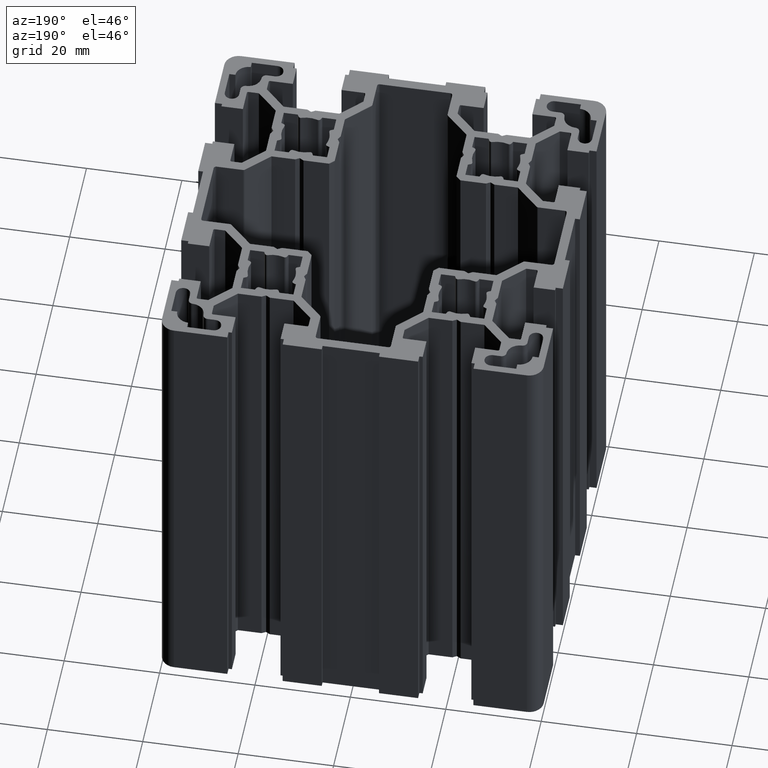
[diagram: clean part render]
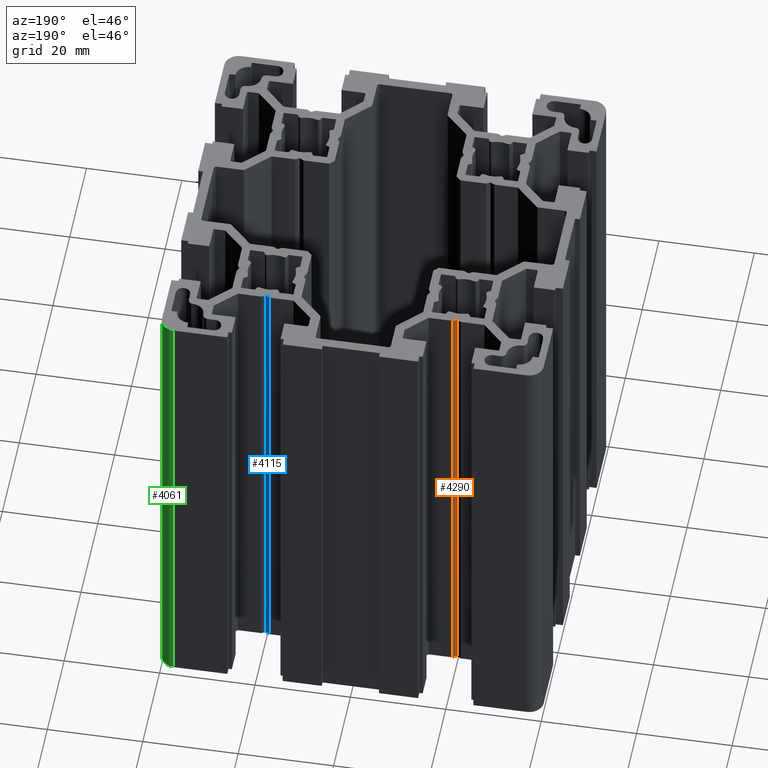
[diagram: same view with three faces highlighted in distinct colors, each labeled with its STEP entity id]
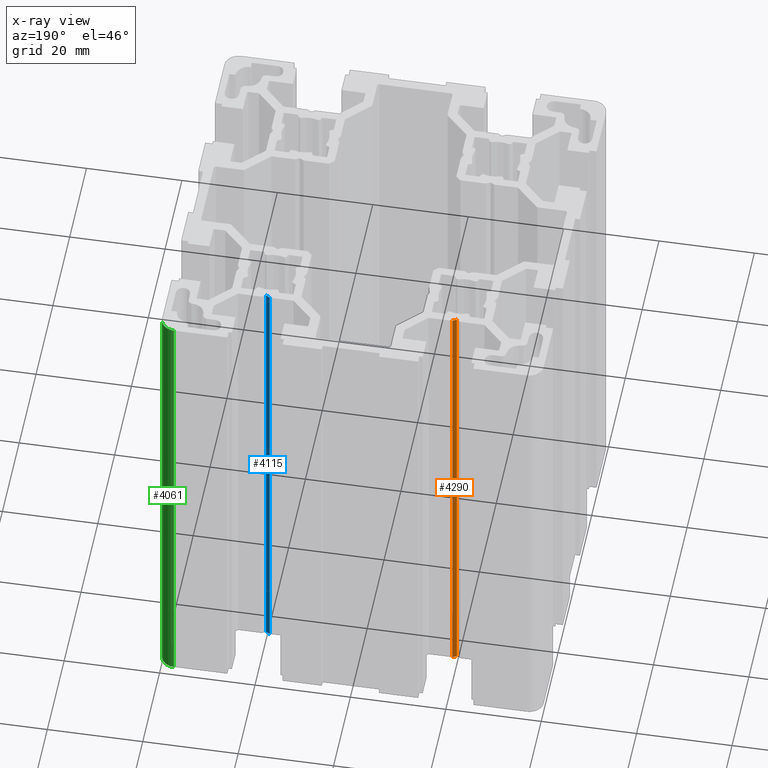
[diagram: x-ray of the same camera — body ghosted, the three highlighted faces saturated]
A machine part, auxiliary view with three faces highlighted in distinct colors.
The next image is the same camera in x-ray (body ghosted, the three faces saturated) — at least one of them is partly hidden behind the body in this view.
Their STEP definitions:

[orange] entity #4290 — the highlighted planar face has unit normal (0.5, -0.866, 0).
#379 = CARTESIAN_POINT ( 'NONE',  ( -19.13397338490159100, 27.25000000000000000, 0.0000000000000000000 ) ) ;
#1496 = CARTESIAN_POINT ( 'NONE',  ( -20.00000069603467900, 26.75000000000000000, 0.0000000000000000000 ) ) ;
#1930 = DIRECTION ( 'NONE',  ( -0.8660258806204188500, -0.4999991740949457100, -0.0000000000000000000 ) ) ;
#1931 = VECTOR ( 'NONE', #1930, 1000.000000000000100 ) ;
#1932 = CARTESIAN_POINT ( 'NONE',  ( -20.00000069603467900, 26.75000000000000000, 0.0000000000000000000 ) ) ;
#1934 = LINE ( 'NONE', #1932, #1931 ) ;
#4242 = EDGE_LOOP ( 'NONE', ( #4291, #4289, #4293, #4294 ) ) ;
#4288 = EDGE_CURVE ( 'NONE', #6105, #7162, #10989, .T. ) ;
#4289 = ORIENTED_EDGE ( 'NONE', *, *, #4288, .F. ) ;
#4290 = ADVANCED_FACE ( 'NONE', ( #11043 ), #11003, .F. ) ;
#4291 = ORIENTED_EDGE ( 'NONE', *, *, #7606, .T. ) ;
#4293 = ORIENTED_EDGE ( 'NONE', *, *, #6171, .F. ) ;
#4294 = ORIENTED_EDGE ( 'NONE', *, *, #4303, .T. ) ;
#4303 = EDGE_CURVE ( 'NONE', #6102, #6582, #11021, .T. ) ;
#6102 = VERTEX_POINT ( 'NONE', #13636 ) ;
#6105 = VERTEX_POINT ( 'NONE', #13684 ) ;
#6171 = EDGE_CURVE ( 'NONE', #6102, #6105, #13798, .T. ) ;
#6582 = VERTEX_POINT ( 'NONE', #379 ) ;
#7162 = VERTEX_POINT ( 'NONE', #1496 ) ;
#7606 = EDGE_CURVE ( 'NONE', #6582, #7162, #1934, .T. ) ;
#10989 = LINE ( 'NONE', #11040, #10995 ) ;
#10995 = VECTOR ( 'NONE', #11038, 1000.000000000000000 ) ;
#11003 = PLANE ( 'NONE',  #11037 ) ;
#11020 = CARTESIAN_POINT ( 'NONE',  ( -19.13397338490159100, 27.25000000000000000, 100.0000000000000000 ) ) ;
#11021 = LINE ( 'NONE', #11020, #11073 ) ;
#11032 = DIRECTION ( 'NONE',  ( 0.8660258806204188500, 0.4999991740949456500, 0.0000000000000000000 ) ) ;
#11033 = DIRECTION ( 'NONE',  ( 0.4999991740949457100, -0.8660258806204189600, 0.0000000000000000000 ) ) ;
#11034 = CARTESIAN_POINT ( 'NONE',  ( -20.00000069603467900, 26.75000000000000000, 100.0000000000000000 ) ) ;
#11037 = AXIS2_PLACEMENT_3D ( 'NONE', #11034, #11033, #11032 ) ;
#11038 = DIRECTION ( 'NONE',  ( -0.0000000000000000000, -0.0000000000000000000, -1.000000000000000000 ) ) ;
#11040 = CARTESIAN_POINT ( 'NONE',  ( -20.00000069603467900, 26.75000000000000000, 100.0000000000000000 ) ) ;
#11043 = FACE_OUTER_BOUND ( 'NONE', #4242, .T. ) ;
#11072 = DIRECTION ( 'NONE',  ( -0.0000000000000000000, -0.0000000000000000000, -1.000000000000000000 ) ) ;
#11073 = VECTOR ( 'NONE', #11072, 1000.000000000000000 ) ;
#13636 = CARTESIAN_POINT ( 'NONE',  ( -19.13397338490159100, 27.25000000000000000, 100.0000000000000000 ) ) ;
#13684 = CARTESIAN_POINT ( 'NONE',  ( -20.00000069603467900, 26.75000000000000000, 100.0000000000000000 ) ) ;
#13794 = DIRECTION ( 'NONE',  ( -0.8660258806204188500, -0.4999991740949457100, -0.0000000000000000000 ) ) ;
#13795 = VECTOR ( 'NONE', #13794, 1000.000000000000100 ) ;
#13796 = CARTESIAN_POINT ( 'NONE',  ( -20.00000069603467900, 26.75000000000000000, 100.0000000000000000 ) ) ;
#13798 = LINE ( 'NONE', #13796, #13795 ) ;

[blue] entity #4115 — the highlighted planar face has unit normal (-0.5, -0.866, 0).
#1944 = CARTESIAN_POINT ( 'NONE',  ( 19.99999948390340900, 26.75000000000000000, 0.0000000000000000000 ) ) ;
#2023 = CARTESIAN_POINT ( 'NONE',  ( 19.13397217277032100, 27.25000000000000000, 0.0000000000000000000 ) ) ;
#2043 = DIRECTION ( 'NONE',  ( -0.8660258806204188500, 0.4999991740949457100, 0.0000000000000000000 ) ) ;
#2044 = VECTOR ( 'NONE', #2043, 1000.000000000000100 ) ;
#2045 = CARTESIAN_POINT ( 'NONE',  ( 19.99999948390340900, 26.75000000000000000, 0.0000000000000000000 ) ) ;
#2046 = LINE ( 'NONE', #2045, #2044 ) ;
#2477 = VERTEX_POINT ( 'NONE', #8190 ) ;
#2478 = VERTEX_POINT ( 'NONE', #8194 ) ;
#2539 = EDGE_CURVE ( 'NONE', #2478, #2477, #8299, .T. ) ;
#4113 = EDGE_CURVE ( 'NONE', #2477, #11827, #10760, .T. ) ;
#4114 = ORIENTED_EDGE ( 'NONE', *, *, #4113, .F. ) ;
#4115 = ADVANCED_FACE ( 'NONE', ( #10765 ), #10761, .F. ) ;
#4116 = ORIENTED_EDGE ( 'NONE', *, *, #11482, .T. ) ;
#4118 = ORIENTED_EDGE ( 'NONE', *, *, #2539, .F. ) ;
#4126 = EDGE_LOOP ( 'NONE', ( #4116, #4114, #4118, #4167 ) ) ;
#4129 = EDGE_CURVE ( 'NONE', #2478, #9128, #10800, .T. ) ;
#4167 = ORIENTED_EDGE ( 'NONE', *, *, #4129, .T. ) ;
#8190 = CARTESIAN_POINT ( 'NONE',  ( 19.13397217277032100, 27.25000000000000000, 100.0000000000000000 ) ) ;
#8194 = CARTESIAN_POINT ( 'NONE',  ( 19.99999948390340900, 26.75000000000000000, 100.0000000000000000 ) ) ;
#8296 = DIRECTION ( 'NONE',  ( -0.8660258806204188500, 0.4999991740949457100, 0.0000000000000000000 ) ) ;
#8297 = VECTOR ( 'NONE', #8296, 1000.000000000000100 ) ;
#8298 = CARTESIAN_POINT ( 'NONE',  ( 19.99999948390340900, 26.75000000000000000, 100.0000000000000000 ) ) ;
#8299 = LINE ( 'NONE', #8298, #8297 ) ;
#9128 = VERTEX_POINT ( 'NONE', #1944 ) ;
#10752 = DIRECTION ( 'NONE',  ( 0.8660258806204188500, -0.4999991740949456500, 0.0000000000000000000 ) ) ;
#10753 = DIRECTION ( 'NONE',  ( -0.4999991740949457100, -0.8660258806204189600, 0.0000000000000000000 ) ) ;
#10754 = CARTESIAN_POINT ( 'NONE',  ( 19.99999948390340900, 26.75000000000000000, 100.0000000000000000 ) ) ;
#10755 = AXIS2_PLACEMENT_3D ( 'NONE', #10754, #10753, #10752 ) ;
#10757 = DIRECTION ( 'NONE',  ( -0.0000000000000000000, -0.0000000000000000000, -1.000000000000000000 ) ) ;
#10758 = VECTOR ( 'NONE', #10757, 1000.000000000000000 ) ;
#10759 = CARTESIAN_POINT ( 'NONE',  ( 19.13397217277032100, 27.25000000000000000, 100.0000000000000000 ) ) ;
#10760 = LINE ( 'NONE', #10759, #10758 ) ;
#10761 = PLANE ( 'NONE',  #10755 ) ;
#10765 = FACE_OUTER_BOUND ( 'NONE', #4126, .T. ) ;
#10797 = DIRECTION ( 'NONE',  ( -0.0000000000000000000, -0.0000000000000000000, -1.000000000000000000 ) ) ;
#10798 = VECTOR ( 'NONE', #10797, 1000.000000000000000 ) ;
#10799 = CARTESIAN_POINT ( 'NONE',  ( 19.99999948390340900, 26.75000000000000000, 100.0000000000000000 ) ) ;
#10800 = LINE ( 'NONE', #10799, #10798 ) ;
#11482 = EDGE_CURVE ( 'NONE', #9128, #11827, #2046, .T. ) ;
#11827 = VERTEX_POINT ( 'NONE', #2023 ) ;

[green] entity #4061 — the highlighted cylindrical surface (edge-blend (fillet) strip) has radius 3 mm, axis along (-0, -0, -1).
#2066 = CARTESIAN_POINT ( 'NONE',  ( 39.99999853022909200, 36.99999999999999300, 0.0000000000000000000 ) ) ;
#2078 = CARTESIAN_POINT ( 'NONE',  ( 36.99999853022909900, 39.99999999999999300, 0.0000000000000000000 ) ) ;
#2091 = CIRCLE ( 'NONE', #2128, 2.999999999999995600 ) ;
#2118 = DIRECTION ( 'NONE',  ( 1.000000000000000000, 0.0000000000000000000, 0.0000000000000000000 ) ) ;
#2119 = DIRECTION ( 'NONE',  ( 0.0000000000000000000, 0.0000000000000000000, 1.000000000000000000 ) ) ;
#2120 = CARTESIAN_POINT ( 'NONE',  ( 36.99999853022909900, 36.99999999999999300, 0.0000000000000000000 ) ) ;
#2128 = AXIS2_PLACEMENT_3D ( 'NONE', #2120, #2119, #2118 ) ;
#2506 = VERTEX_POINT ( 'NONE', #8196 ) ;
#2526 = EDGE_CURVE ( 'NONE', #2566, #2506, #8274, .T. ) ;
#2566 = VERTEX_POINT ( 'NONE', #8362 ) ;
#3984 = ORIENTED_EDGE ( 'NONE', *, *, #4005, .T. ) ;
#4005 = EDGE_CURVE ( 'NONE', #2566, #12098, #10576, .T. ) ;
#4043 = ORIENTED_EDGE ( 'NONE', *, *, #2526, .F. ) ;
#4059 = EDGE_CURVE ( 'NONE', #2506, #11987, #10667, .T. ) ;
#4060 = ORIENTED_EDGE ( 'NONE', *, *, #4059, .F. ) ;
#4061 = ADVANCED_FACE ( 'NONE', ( #10672 ), #10663, .T. ) ;
#4062 = ORIENTED_EDGE ( 'NONE', *, *, #14288, .T. ) ;
#4069 = EDGE_LOOP ( 'NONE', ( #4062, #4060, #4043, #3984 ) ) ;
#8196 = CARTESIAN_POINT ( 'NONE',  ( 36.99999853022909900, 39.99999999999999300, 100.0000000000000000 ) ) ;
#8268 = DIRECTION ( 'NONE',  ( 1.000000000000000000, 0.0000000000000000000, 0.0000000000000000000 ) ) ;
#8269 = DIRECTION ( 'NONE',  ( 0.0000000000000000000, 0.0000000000000000000, 1.000000000000000000 ) ) ;
#8270 = CARTESIAN_POINT ( 'NONE',  ( 36.99999853022909900, 36.99999999999999300, 100.0000000000000000 ) ) ;
#8271 = AXIS2_PLACEMENT_3D ( 'NONE', #8270, #8269, #8268 ) ;
#8274 = CIRCLE ( 'NONE', #8271, 2.999999999999995600 ) ;
#8362 = CARTESIAN_POINT ( 'NONE',  ( 39.99999853022909200, 36.99999999999999300, 100.0000000000000000 ) ) ;
#10576 = LINE ( 'NONE', #10625, #10624 ) ;
#10623 = DIRECTION ( 'NONE',  ( -0.0000000000000000000, -0.0000000000000000000, -1.000000000000000000 ) ) ;
#10624 = VECTOR ( 'NONE', #10623, 1000.000000000000000 ) ;
#10625 = CARTESIAN_POINT ( 'NONE',  ( 39.99999853022909200, 36.99999999999999300, 100.0000000000000000 ) ) ;
#10659 = DIRECTION ( 'NONE',  ( -0.0000000000000000000, -0.0000000000000000000, -1.000000000000000000 ) ) ;
#10660 = CARTESIAN_POINT ( 'NONE',  ( 36.99999853022909900, 36.99999999999999300, 100.0000000000000000 ) ) ;
#10661 = AXIS2_PLACEMENT_3D ( 'NONE', #10660, #10659, #10720 ) ;
#10663 = CYLINDRICAL_SURFACE ( 'NONE', #10661, 2.999999999999995600 ) ;
#10664 = DIRECTION ( 'NONE',  ( -0.0000000000000000000, -0.0000000000000000000, -1.000000000000000000 ) ) ;
#10665 = VECTOR ( 'NONE', #10664, 1000.000000000000000 ) ;
#10666 = CARTESIAN_POINT ( 'NONE',  ( 36.99999853022909900, 39.99999999999999300, 100.0000000000000000 ) ) ;
#10667 = LINE ( 'NONE', #10666, #10665 ) ;
#10672 = FACE_OUTER_BOUND ( 'NONE', #4069, .T. ) ;
#10720 = DIRECTION ( 'NONE',  ( -1.000000000000000000, 0.0000000000000000000, 0.0000000000000000000 ) ) ;
#11987 = VERTEX_POINT ( 'NONE', #2078 ) ;
#12098 = VERTEX_POINT ( 'NONE', #2066 ) ;
#14288 = EDGE_CURVE ( 'NONE', #12098, #11987, #2091, .T. ) ;